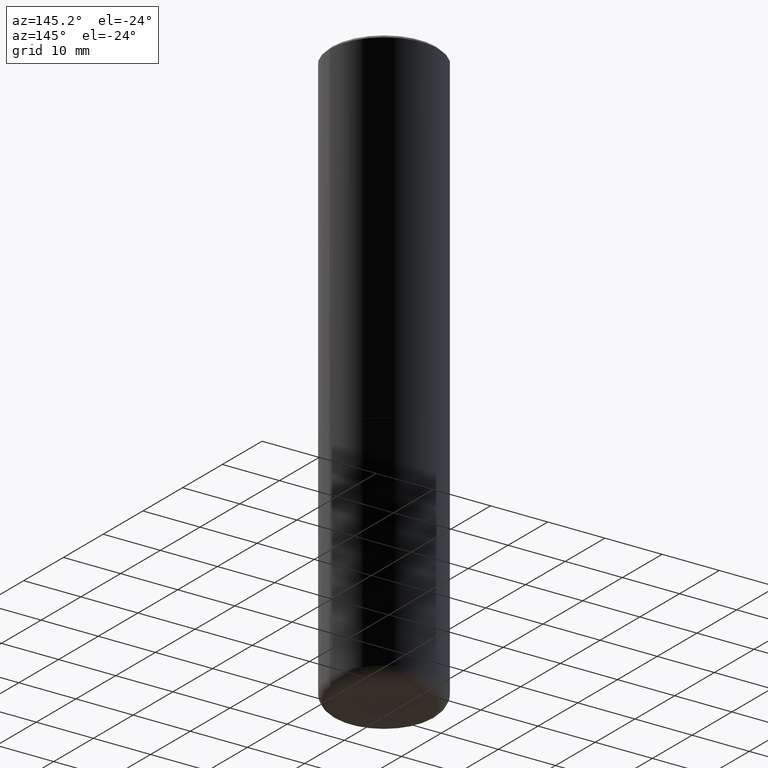
[diagram: clean part render]
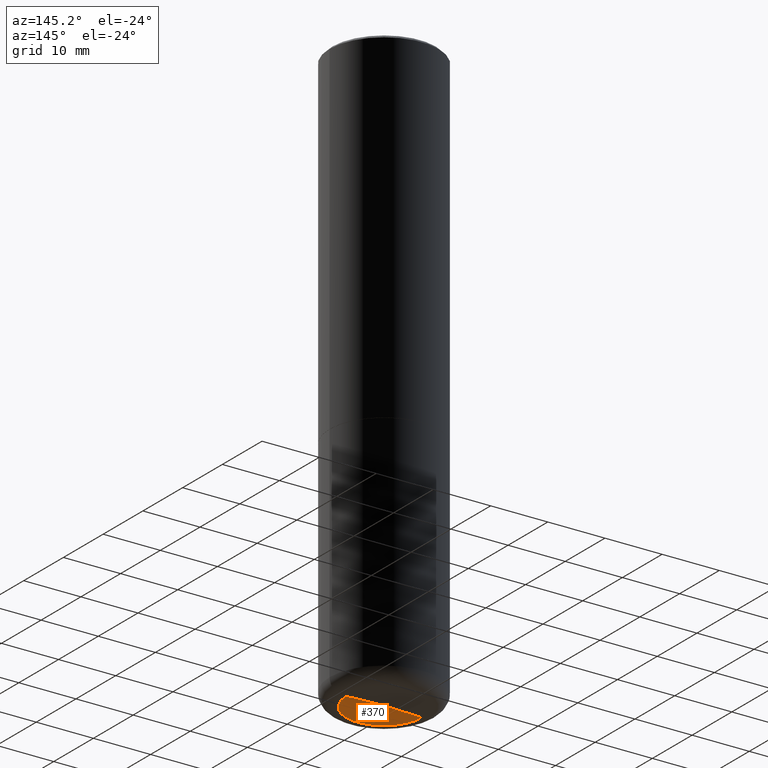
[diagram: same view with one face highlighted and labeled with its STEP entity id]
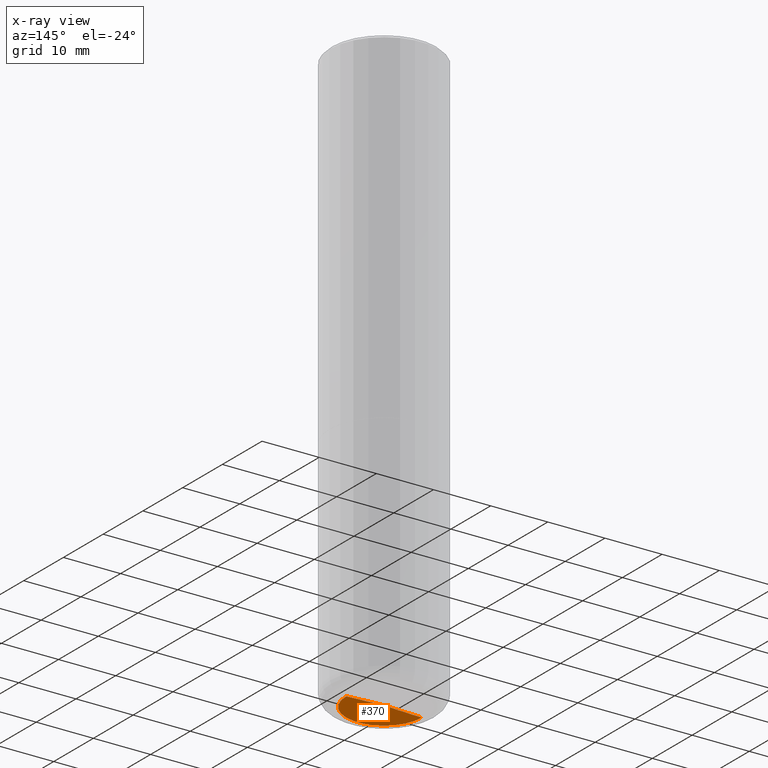
[diagram: x-ray of the same camera — body ghosted, the highlighted face saturated]
A machine part, auxiliary view. The second image highlights one B-rep face of the part: STEP entity #370.
The next image is the same camera in x-ray: the body ghosted, the highlighted face saturated — about 0% of this face is hidden behind the body in this view.
In plain terms, the highlighted conical surface has half-angle 88 deg.
Its self-contained STEP definition (entity closure, byte-faithful):
#4 = LINE ( 'NONE', #270, #458 ) ;
#42 = FACE_OUTER_BOUND ( 'NONE', #131, .T. ) ;
#57 = ORIENTED_EDGE ( 'NONE', *, *, #374, .T. ) ;
#67 = CONICAL_SURFACE ( 'NONE', #77, 0.2602146118051471002, 1.535889741755011029 ) ;
#77 = AXIS2_PLACEMENT_3D ( 'NONE', #115, #150, #267 ) ;
#83 = LINE ( 'NONE', #268, #299 ) ;
#94 = VERTEX_POINT ( 'NONE', #216 ) ;
#113 = DIRECTION ( 'NONE',  ( 0.9993908270190957621, -6.978169709227537544E-15, -0.03489949670249996999 ) ) ;
#115 = CARTESIAN_POINT ( 'NONE',  ( 9.781363033949554228E-29, -1.396519408266767050E-14, -3.999790555173021733 ) ) ;
#120 = DIRECTION ( 'NONE',  ( -2.445468806185136597E-29, 3.491481338843145583E-15, 1.000000000000000000 ) ) ;
#131 = EDGE_LOOP ( 'NONE', ( #430, #57, #353 ) ) ;
#141 = EDGE_CURVE ( 'NONE', #94, #464, #83, .T. ) ;
#150 = DIRECTION ( 'NONE',  ( 2.445468806185136597E-29, -3.491481338843145583E-15, -1.000000000000000000 ) ) ;
#153 = CIRCLE ( 'NONE', #482, 0.2602146118051471002 ) ;
#199 = CARTESIAN_POINT ( 'NONE',  ( 9.781363033949554228E-29, -1.396519408266767050E-14, -3.999790555173021733 ) ) ;
#203 = VERTEX_POINT ( 'NONE', #378 ) ;
#216 = CARTESIAN_POINT ( 'NONE',  ( 9.759751238418562022E-29, -1.393259391792969800E-14, -3.990703660695789523 ) ) ;
#267 = DIRECTION ( 'NONE',  ( -1.000000000000000000, 6.982962677686269866E-15, 0.000000000000000000 ) ) ;
#268 = CARTESIAN_POINT ( 'NONE',  ( -0.2602146118051471002, -1.214812516024370648E-14, -3.999790555173021733 ) ) ;
#270 = CARTESIAN_POINT ( 'NONE',  ( 0.2602146118051471002, -1.575039590594777817E-14, -3.999790555173021733 ) ) ;
#274 = DIRECTION ( 'NONE',  ( 1.000000000000000000, -6.982962677686269866E-15, 0.000000000000000000 ) ) ;
#299 = VECTOR ( 'NONE', #423, 39.37007874015748143 ) ;
#353 = ORIENTED_EDGE ( 'NONE', *, *, #471, .F. ) ;
#362 = CARTESIAN_POINT ( 'NONE',  ( -0.2602146118051471002, -1.214812516024370648E-14, -3.999790555173021733 ) ) ;
#370 = ADVANCED_FACE ( 'NONE', ( #42 ), #67, .F. ) ;
#374 = EDGE_CURVE ( 'NONE', #94, #203, #4, .T. ) ;
#378 = CARTESIAN_POINT ( 'NONE',  ( 0.2602146118051471002, -1.575039590594777817E-14, -3.999790555173021733 ) ) ;
#423 = DIRECTION ( 'NONE',  ( -0.9993908270190957621, 6.856857904024560415E-15, -0.03489949670249996999 ) ) ;
#430 = ORIENTED_EDGE ( 'NONE', *, *, #141, .F. ) ;
#458 = VECTOR ( 'NONE', #113, 39.37007874015748143 ) ;
#464 = VERTEX_POINT ( 'NONE', #362 ) ;
#471 = EDGE_CURVE ( 'NONE', #464, #203, #153, .T. ) ;
#482 = AXIS2_PLACEMENT_3D ( 'NONE', #199, #120, #274 ) ;